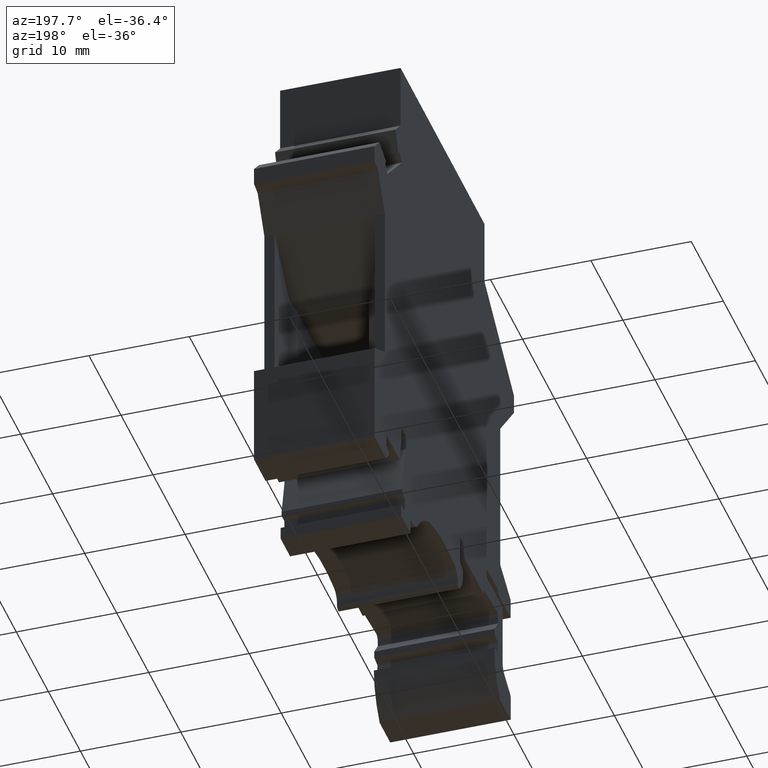
[diagram: clean part render]
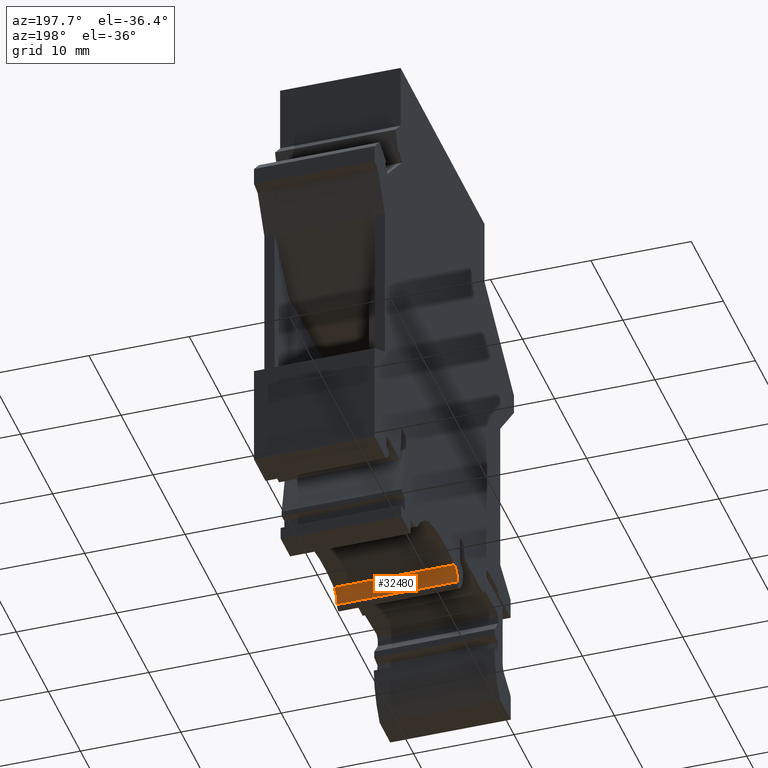
[diagram: same view with one face highlighted and labeled with its STEP entity id]
A machine part, auxiliary view. The second image highlights one B-rep face of the part: STEP entity #32480.
In plain terms, the highlighted cylindrical surface (edge-blend (fillet) strip) has radius 1.2 mm, axis along (1, 0, 0).
Its self-contained STEP definition (entity closure, byte-faithful):
#4170=CARTESIAN_POINT('',(-156.40304203195,118.373216563793,-12.));
#4180=VERTEX_POINT('',#4170);
#4210=CARTESIAN_POINT('',(-155.211793008695,118.51787396801,-12.));
#4220=DIRECTION('',(0.,0.,1.));
#4230=DIRECTION('',(1.,0.,0.));
#4240=AXIS2_PLACEMENT_3D('',#4210,#4220,#4230);
#4250=CIRCLE('',#4240,1.20000000000004);
#4260=CARTESIAN_POINT('',(-155.434726446215,119.696984091127,-12.));
#4270=VERTEX_POINT('',#4260);
#4280=EDGE_CURVE('',#4270,#4180,#4250,.T.);
#31700=CARTESIAN_POINT('',(-155.434726446215,119.696984091127,0.));
#31710=VERTEX_POINT('',#31700);
#31760=CARTESIAN_POINT('',(-155.434726446215,119.696984091127,0.));
#31770=DIRECTION('',(0.,0.,-1.));
#31780=VECTOR('',#31770,1.);
#31790=LINE('',#31760,#31780);
#31800=EDGE_CURVE('',#31710,#4270,#31790,.T.);
#32040=CARTESIAN_POINT('',(-156.40304203195,118.373216563793,0.));
#32050=VERTEX_POINT('',#32040);
#32080=CARTESIAN_POINT('',(-156.40304203195,118.373216563793,0.));
#32090=DIRECTION('',(0.,0.,-1.));
#32100=VECTOR('',#32090,1.);
#32110=LINE('',#32080,#32100);
#32120=EDGE_CURVE('',#32050,#4180,#32110,.T.);
#32310=CARTESIAN_POINT('',(-155.211793008695,118.51787396801,0.));
#32320=DIRECTION('',(0.,0.,1.));
#32330=DIRECTION('',(1.,0.,0.));
#32340=AXIS2_PLACEMENT_3D('',#32310,#32320,#32330);
#32350=CYLINDRICAL_SURFACE('',#32340,1.20000000000004);
#32360=CARTESIAN_POINT('',(-155.211793008695,118.51787396801,0.));
#32370=DIRECTION('',(0.,0.,1.));
#32380=DIRECTION('',(1.,0.,0.));
#32390=AXIS2_PLACEMENT_3D('',#32360,#32370,#32380);
#32400=CIRCLE('',#32390,1.20000000000004);
#32410=EDGE_CURVE('',#31710,#32050,#32400,.T.);
#32420=ORIENTED_EDGE('',*,*,#32410,.T.);
#32430=ORIENTED_EDGE('',*,*,#31800,.F.);
#32440=ORIENTED_EDGE('',*,*,#4280,.F.);
#32450=ORIENTED_EDGE('',*,*,#32120,.T.);
#32460=EDGE_LOOP('',(#32450,#32440,#32430,#32420));
#32470=FACE_OUTER_BOUND('',#32460,.T.);
#32480=ADVANCED_FACE('',(#32470),#32350,.F.);